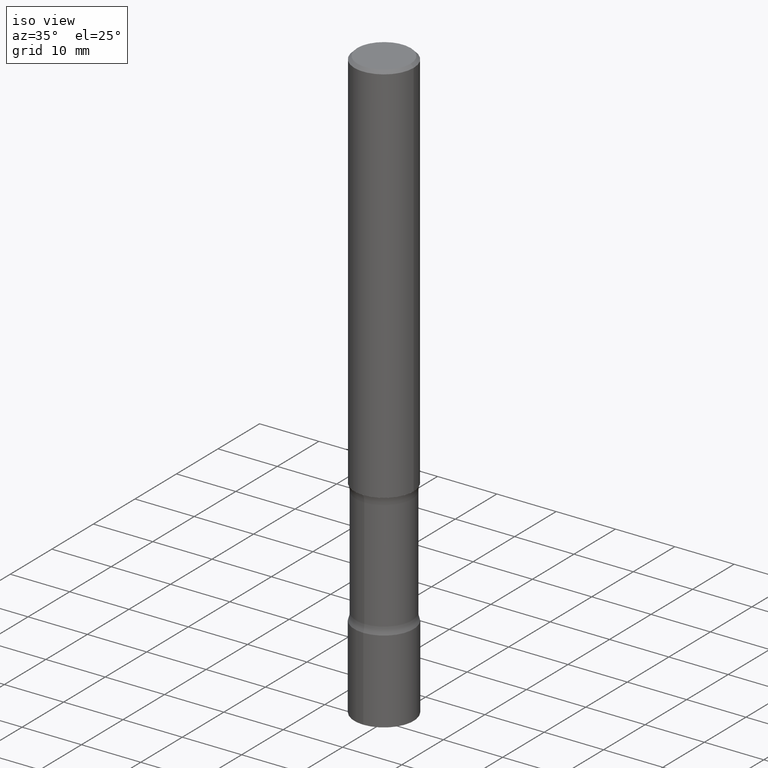
[diagram: clean part render]
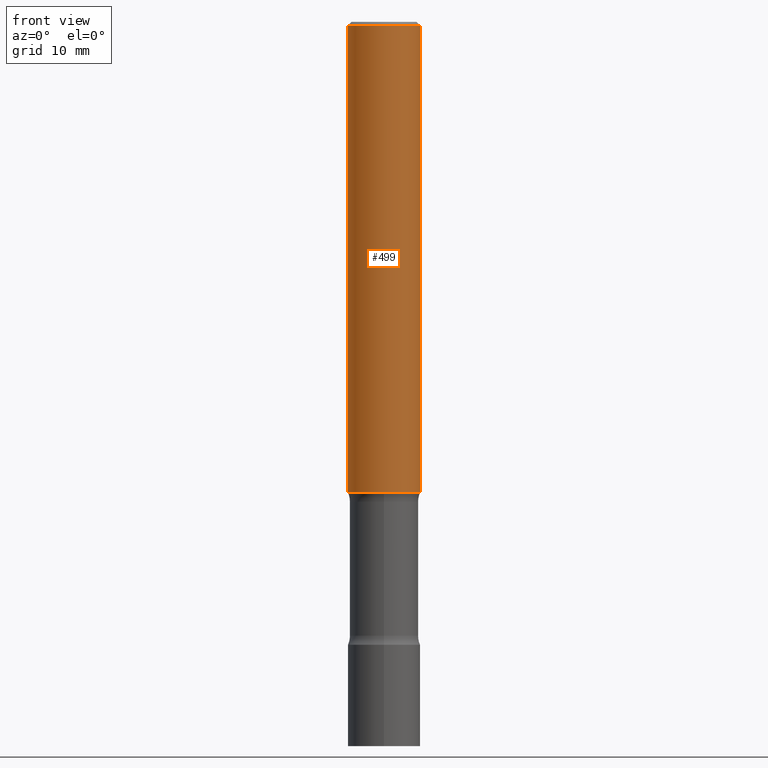
[diagram: tour spotlight — one face highlighted and labeled with its STEP entity id]
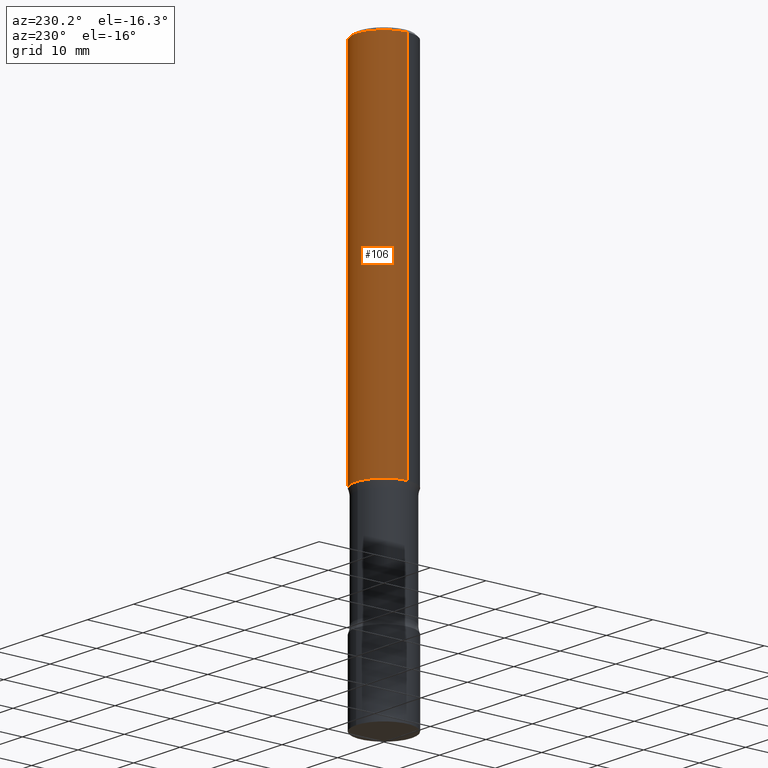
[diagram: tour spotlight — one face highlighted and labeled with its STEP entity id]
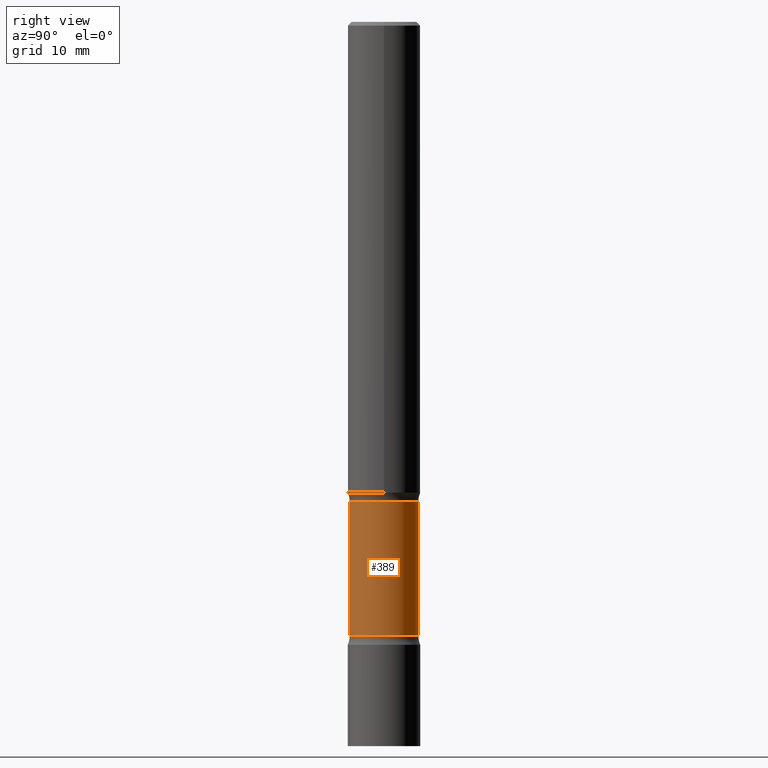
[diagram: tour spotlight — one face highlighted and labeled with its STEP entity id]
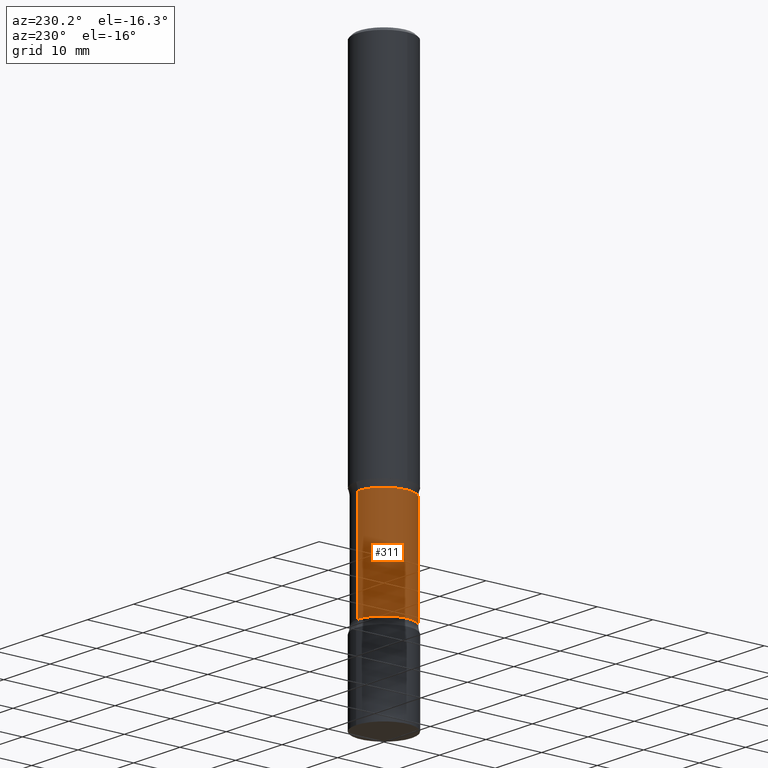
[diagram: tour spotlight — one face highlighted and labeled with its STEP entity id]
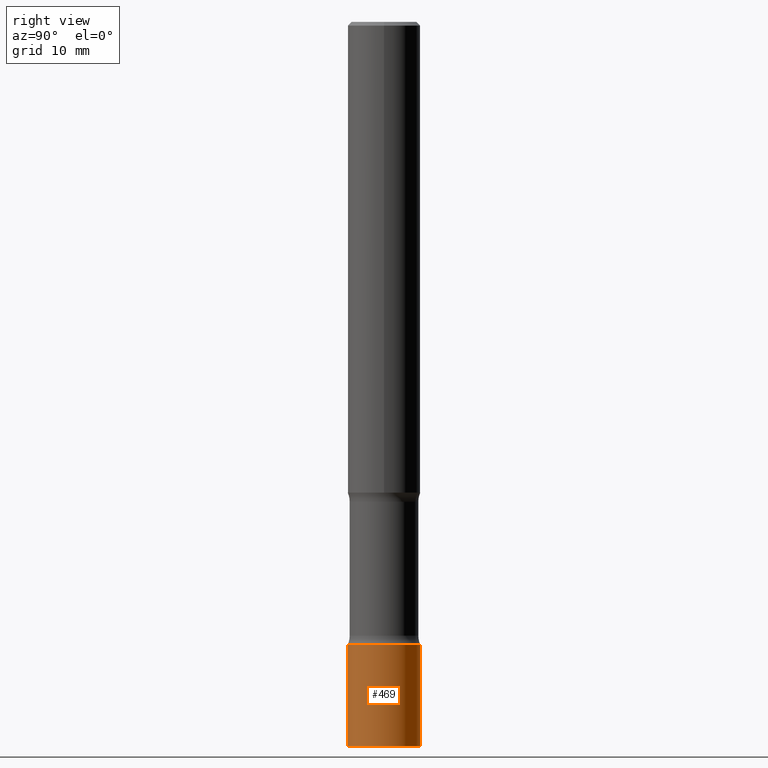
[diagram: tour spotlight — one face highlighted and labeled with its STEP entity id]
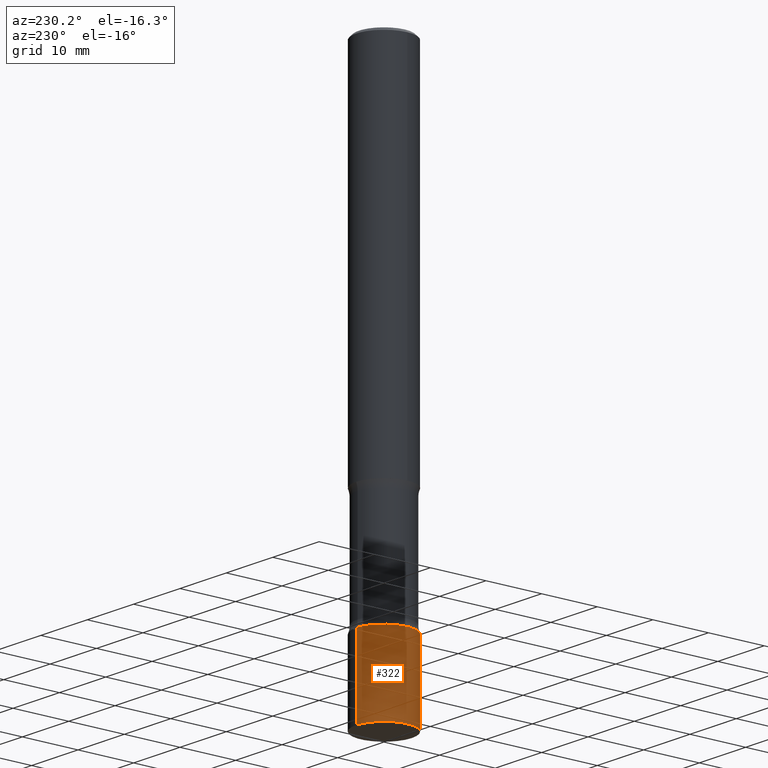
[diagram: tour spotlight — one face highlighted and labeled with its STEP entity id]
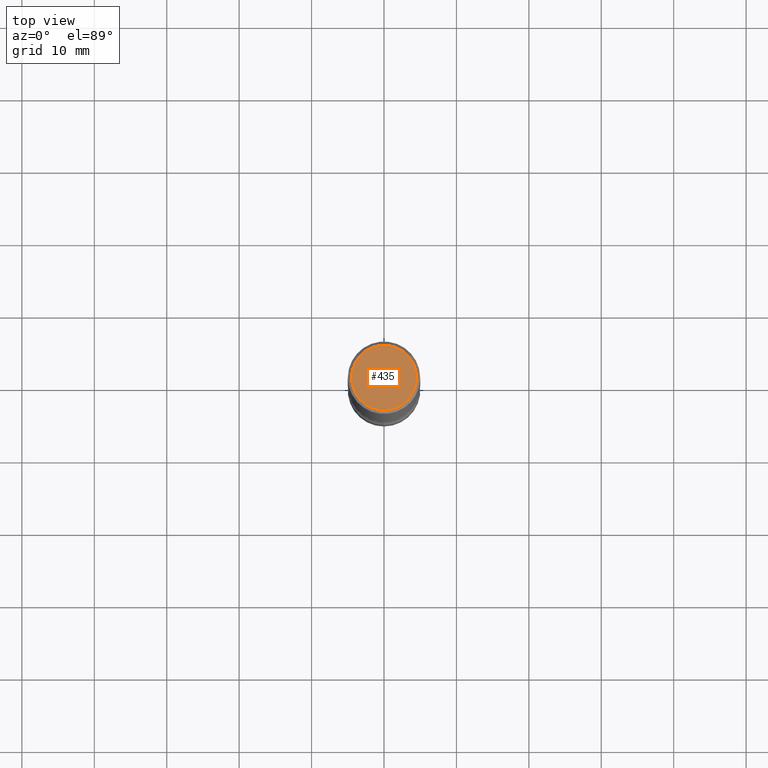
[diagram: tour spotlight — one face highlighted and labeled with its STEP entity id]
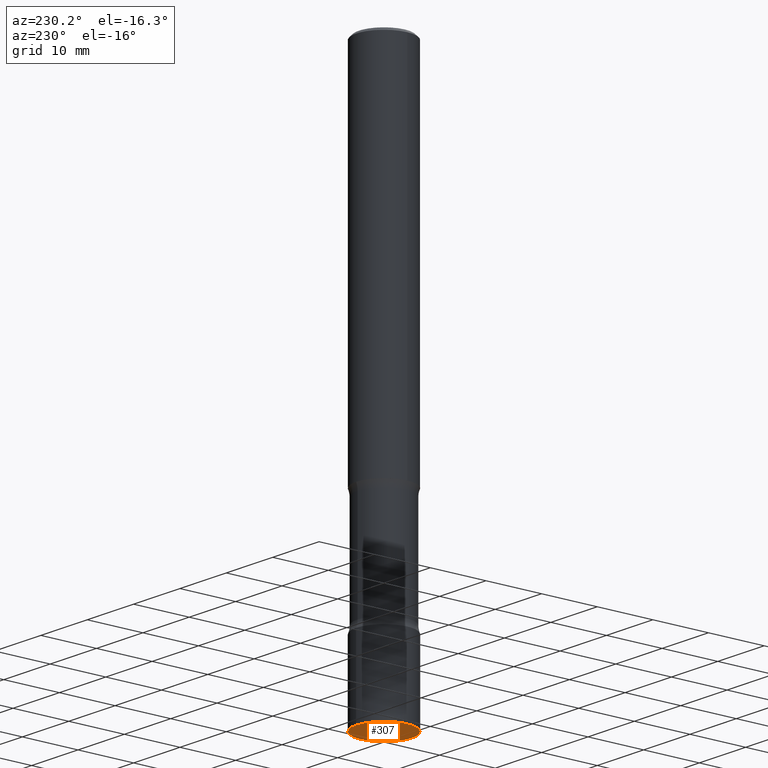
[diagram: tour spotlight — one face highlighted and labeled with its STEP entity id]
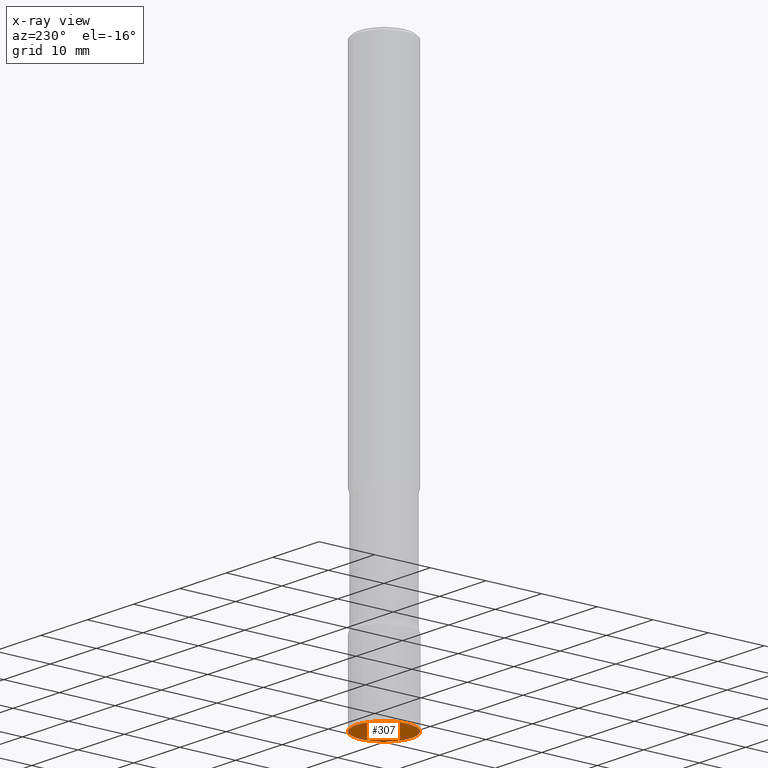
[diagram: x-ray of the same camera — body ghosted, this tour face saturated]
A machine part: a face-by-face anatomy tour. The part has 18 B-rep faces; the first image is the clean iso view, then the 8 largest visible faces are spotlighted one at a time (largest first), each with its STEP entity span.

Face 1 — front view, entity #499. In plain terms, the highlighted cylindrical surface (edge-blend (fillet) strip) has radius 5 mm, axis along (-0, 0, 1).
Definition (entity closure, byte-faithful):
#16 = CIRCLE ( 'NONE', #301, 0.1968499999999997752 ) ;
#17 = AXIS2_PLACEMENT_3D ( 'NONE', #262, #104, #299 ) ;
#42 = CARTESIAN_POINT ( 'NONE',  ( -0.1968500000000000250, -3.103561811094477015E-15, -2.559000000000000163 ) ) ;
#46 = VECTOR ( 'NONE', #358, 39.37007874015748143 ) ;
#75 = CARTESIAN_POINT ( 'NONE',  ( 4.890937612370273159E-31, -6.982962677686291609E-17, -0.02000000000000000042 ) ) ;
#80 = CARTESIAN_POINT ( 'NONE',  ( 0.1968499999999997752, -1.420318657638187347E-15, -0.02000000000000000042 ) ) ;
#81 = CARTESIAN_POINT ( 'NONE',  ( -0.1968499999999997752, 1.304766576325677127E-15, -0.02000000000000000042 ) ) ;
#89 = EDGE_CURVE ( 'NONE', #485, #133, #323, .T. ) ;
#91 = VERTEX_POINT ( 'NONE', #81 ) ;
#95 = ORIENTED_EDGE ( 'NONE', *, *, #229, .F. ) ;
#101 = ORIENTED_EDGE ( 'NONE', *, *, #257, .F. ) ;
#104 = DIRECTION ( 'NONE',  ( -2.445468806185136597E-29, 3.491481338843145583E-15, 1.000000000000000000 ) ) ;
#105 = DIRECTION ( 'NONE',  ( 1.000000000000000000, -6.982962677686267499E-15, 0.000000000000000000 ) ) ;
#118 = EDGE_CURVE ( 'NONE', #133, #226, #349, .T. ) ;
#133 = VERTEX_POINT ( 'NONE', #279 ) ;
#139 = ORIENTED_EDGE ( 'NONE', *, *, #118, .T. ) ;
#163 = VECTOR ( 'NONE', #273, 39.37007874015748143 ) ;
#224 = EDGE_LOOP ( 'NONE', ( #101, #426, #139, #95 ) ) ;
#226 = VERTEX_POINT ( 'NONE', #80 ) ;
#229 = EDGE_CURVE ( 'NONE', #91, #226, #16, .T. ) ;
#249 = CARTESIAN_POINT ( 'NONE',  ( -0.1968499999999999139, 1.398703375343756604E-15, -9.682923725166778072E-30 ) ) ;
#257 = EDGE_CURVE ( 'NONE', #485, #91, #442, .T. ) ;
#262 = CARTESIAN_POINT ( 'NONE',  ( 0.000000000000000000, 0.000000000000000000, 0.000000000000000000 ) ) ;
#269 = CARTESIAN_POINT ( 'NONE',  ( 0.1968499999999999139, -1.374596203102541017E-15, 9.598753983154295253E-30 ) ) ;
#273 = DIRECTION ( 'NONE',  ( -2.445468806185136877E-29, 3.491481338843145188E-15, 1.000000000000000000 ) ) ;
#279 = CARTESIAN_POINT ( 'NONE',  ( 0.1968500000000000250, -1.030929694920215344E-14, -2.559000000000000163 ) ) ;
#299 = DIRECTION ( 'NONE',  ( 1.000000000000000000, -6.982962677686266711E-15, 4.876176775795935793E-29 ) ) ;
#301 = AXIS2_PLACEMENT_3D ( 'NONE', #75, #470, #341 ) ;
#323 = CIRCLE ( 'NONE', #331, 0.1968500000000000250 ) ;
#331 = AXIS2_PLACEMENT_3D ( 'NONE', #471, #439, #105 ) ;
#341 = DIRECTION ( 'NONE',  ( 1.000000000000000000, -6.982962677686266711E-15, 0.000000000000000000 ) ) ;
#347 = FACE_OUTER_BOUND ( 'NONE', #224, .T. ) ;
#349 = LINE ( 'NONE', #269, #163 ) ;
#358 = DIRECTION ( 'NONE',  ( -2.445468806185136877E-29, 3.491481338843145188E-15, 1.000000000000000000 ) ) ;
#426 = ORIENTED_EDGE ( 'NONE', *, *, #89, .T. ) ;
#439 = DIRECTION ( 'NONE',  ( -2.445468806185136597E-29, 3.491481338843145583E-15, 1.000000000000000000 ) ) ;
#442 = LINE ( 'NONE', #249, #46 ) ;
#455 = CYLINDRICAL_SURFACE ( 'NONE', #17, 0.1968499999999999139 ) ;
#470 = DIRECTION ( 'NONE',  ( -2.445468806185136597E-29, 3.491481338843145583E-15, 1.000000000000000000 ) ) ;
#471 = CARTESIAN_POINT ( 'NONE',  ( 6.257954675027765161E-29, -8.934700746099610252E-15, -2.559000000000000163 ) ) ;
#485 = VERTEX_POINT ( 'NONE', #42 ) ;
#499 = ADVANCED_FACE ( 'NONE', ( #347 ), #455, .T. ) ;

Face 2 — auxiliary view, entity #106. In plain terms, the highlighted cylindrical surface (edge-blend (fillet) strip) has radius 5 mm, axis along (-0, 0, 1).
Definition (entity closure, byte-faithful):
#24 = CIRCLE ( 'NONE', #449, 0.1968500000000000250 ) ;
#42 = CARTESIAN_POINT ( 'NONE',  ( -0.1968500000000000250, -3.103561811094477015E-15, -2.559000000000000163 ) ) ;
#46 = VECTOR ( 'NONE', #358, 39.37007874015748143 ) ;
#61 = AXIS2_PLACEMENT_3D ( 'NONE', #143, #271, #425 ) ;
#80 = CARTESIAN_POINT ( 'NONE',  ( 0.1968499999999997752, -1.420318657638187347E-15, -0.02000000000000000042 ) ) ;
#81 = CARTESIAN_POINT ( 'NONE',  ( -0.1968499999999997752, 1.304766576325677127E-15, -0.02000000000000000042 ) ) ;
#91 = VERTEX_POINT ( 'NONE', #81 ) ;
#106 = ADVANCED_FACE ( 'NONE', ( #460 ), #502, .T. ) ;
#114 = DIRECTION ( 'NONE',  ( -2.445468806185136597E-29, 3.491481338843145583E-15, 1.000000000000000000 ) ) ;
#118 = EDGE_CURVE ( 'NONE', #133, #226, #349, .T. ) ;
#133 = VERTEX_POINT ( 'NONE', #279 ) ;
#143 = CARTESIAN_POINT ( 'NONE',  ( 0.000000000000000000, 0.000000000000000000, 0.000000000000000000 ) ) ;
#153 = CARTESIAN_POINT ( 'NONE',  ( 4.890937612370273159E-31, -6.982962677686291609E-17, -0.02000000000000000042 ) ) ;
#163 = VECTOR ( 'NONE', #273, 39.37007874015748143 ) ;
#177 = DIRECTION ( 'NONE',  ( 1.000000000000000000, -6.982962677686266711E-15, 0.000000000000000000 ) ) ;
#221 = EDGE_CURVE ( 'NONE', #226, #91, #239, .T. ) ;
#226 = VERTEX_POINT ( 'NONE', #80 ) ;
#239 = CIRCLE ( 'NONE', #272, 0.1968499999999997752 ) ;
#249 = CARTESIAN_POINT ( 'NONE',  ( -0.1968499999999999139, 1.398703375343756604E-15, -9.682923725166778072E-30 ) ) ;
#257 = EDGE_CURVE ( 'NONE', #485, #91, #442, .T. ) ;
#269 = CARTESIAN_POINT ( 'NONE',  ( 0.1968499999999999139, -1.374596203102541017E-15, 9.598753983154295253E-30 ) ) ;
#271 = DIRECTION ( 'NONE',  ( -2.445468806185136597E-29, 3.491481338843145583E-15, 1.000000000000000000 ) ) ;
#272 = AXIS2_PLACEMENT_3D ( 'NONE', #153, #433, #177 ) ;
#273 = DIRECTION ( 'NONE',  ( -2.445468806185136877E-29, 3.491481338843145188E-15, 1.000000000000000000 ) ) ;
#279 = CARTESIAN_POINT ( 'NONE',  ( 0.1968500000000000250, -1.030929694920215344E-14, -2.559000000000000163 ) ) ;
#282 = EDGE_CURVE ( 'NONE', #133, #485, #24, .T. ) ;
#289 = DIRECTION ( 'NONE',  ( 1.000000000000000000, -6.982962677686267499E-15, 0.000000000000000000 ) ) ;
#300 = ORIENTED_EDGE ( 'NONE', *, *, #282, .T. ) ;
#329 = ORIENTED_EDGE ( 'NONE', *, *, #221, .F. ) ;
#349 = LINE ( 'NONE', #269, #163 ) ;
#358 = DIRECTION ( 'NONE',  ( -2.445468806185136877E-29, 3.491481338843145188E-15, 1.000000000000000000 ) ) ;
#382 = EDGE_LOOP ( 'NONE', ( #300, #457, #329, #386 ) ) ;
#386 = ORIENTED_EDGE ( 'NONE', *, *, #118, .F. ) ;
#425 = DIRECTION ( 'NONE',  ( 1.000000000000000000, -6.982962677686266711E-15, 4.876176775795935793E-29 ) ) ;
#433 = DIRECTION ( 'NONE',  ( -2.445468806185136597E-29, 3.491481338843145583E-15, 1.000000000000000000 ) ) ;
#442 = LINE ( 'NONE', #249, #46 ) ;
#449 = AXIS2_PLACEMENT_3D ( 'NONE', #478, #114, #289 ) ;
#457 = ORIENTED_EDGE ( 'NONE', *, *, #257, .T. ) ;
#460 = FACE_OUTER_BOUND ( 'NONE', #382, .T. ) ;
#478 = CARTESIAN_POINT ( 'NONE',  ( 6.257954675027765161E-29, -8.934700746099610252E-15, -2.559000000000000163 ) ) ;
#485 = VERTEX_POINT ( 'NONE', #42 ) ;
#502 = CYLINDRICAL_SURFACE ( 'NONE', #61, 0.1968499999999999139 ) ;

Face 3 — right view, entity #389. In plain terms, the highlighted cylindrical surface (edge-blend (fillet) strip) has radius 4.7409 mm, axis along (0, -0, -1).
Definition (entity closure, byte-faithful):
#7 = CARTESIAN_POINT ( 'NONE',  ( 1.303369983790224529E-15, 0.1866499999999884918, -3.336343352317409749 ) ) ;
#9 = CIRCLE ( 'NONE', #126, 0.1866500000000001769 ) ;
#19 = DIRECTION ( 'NONE',  ( 2.621033774740748860E-29, -3.240062311334059652E-15, -1.000000000000000000 ) ) ;
#35 = VERTEX_POINT ( 'NONE', #7 ) ;
#65 = CYLINDRICAL_SURFACE ( 'NONE', #109, 0.1866500000000001769 ) ;
#102 = CARTESIAN_POINT ( 'NONE',  ( 9.722309541468059850E-29, -1.361063429711225876E-14, -3.937000000000000277 ) ) ;
#109 = AXIS2_PLACEMENT_3D ( 'NONE', #102, #429, #209 ) ;
#113 = EDGE_CURVE ( 'NONE', #298, #130, #9, .T. ) ;
#124 = DIRECTION ( 'NONE',  ( 2.621033774740748860E-29, -3.240062311334059652E-15, -1.000000000000000000 ) ) ;
#126 = AXIS2_PLACEMENT_3D ( 'NONE', #328, #124, #266 ) ;
#130 = VERTEX_POINT ( 'NONE', #507 ) ;
#138 = ORIENTED_EDGE ( 'NONE', *, *, #383, .F. ) ;
#140 = DIRECTION ( 'NONE',  ( 6.982962677686266711E-15, 1.000000000000000000, -2.927241354046890727E-15 ) ) ;
#146 = DIRECTION ( 'NONE',  ( 2.621033774740748860E-29, -3.240062311334059652E-15, -1.000000000000000000 ) ) ;
#152 = FACE_OUTER_BOUND ( 'NONE', #397, .T. ) ;
#157 = CARTESIAN_POINT ( 'NONE',  ( 1.303369983790205202E-15, 0.1866499999999908510, -2.608456647682592333 ) ) ;
#164 = AXIS2_PLACEMENT_3D ( 'NONE', #387, #146, #140 ) ;
#172 = VECTOR ( 'NONE', #352, 39.37007874015748143 ) ;
#182 = ORIENTED_EDGE ( 'NONE', *, *, #187, .T. ) ;
#187 = EDGE_CURVE ( 'NONE', #130, #219, #438, .T. ) ;
#205 = LINE ( 'NONE', #206, #424 ) ;
#206 = CARTESIAN_POINT ( 'NONE',  ( 1.303369983790240109E-15, 0.1866499999999865489, -3.937000000000000721 ) ) ;
#209 = DIRECTION ( 'NONE',  ( 6.982962677686266711E-15, 1.000000000000000000, -2.927241354046890727E-15 ) ) ;
#219 = VERTEX_POINT ( 'NONE', #346 ) ;
#266 = DIRECTION ( 'NONE',  ( 6.982962677686266711E-15, 1.000000000000000000, -2.927241354046890727E-15 ) ) ;
#298 = VERTEX_POINT ( 'NONE', #157 ) ;
#302 = ORIENTED_EDGE ( 'NONE', *, *, #446, .F. ) ;
#328 = CARTESIAN_POINT ( 'NONE',  ( 6.240152543836834912E-29, -9.306071052295215238E-15, -2.608456647682591889 ) ) ;
#346 = CARTESIAN_POINT ( 'NONE',  ( -1.315500491072609724E-15, -0.1866500000000118620, -3.336343352317408861 ) ) ;
#352 = DIRECTION ( 'NONE',  ( 2.621033774740748860E-29, -3.240062311334059652E-15, -1.000000000000000000 ) ) ;
#383 = EDGE_CURVE ( 'NONE', #35, #219, #415, .T. ) ;
#387 = CARTESIAN_POINT ( 'NONE',  ( 8.147968180869435067E-29, -1.166446933090363476E-14, -3.336343352317409305 ) ) ;
#389 = ADVANCED_FACE ( 'NONE', ( #152 ), #65, .T. ) ;
#397 = EDGE_LOOP ( 'NONE', ( #491, #182, #138, #302 ) ) ;
#398 = CARTESIAN_POINT ( 'NONE',  ( -1.280511951283960283E-15, -0.1866500000000138049, -3.936999999999999389 ) ) ;
#415 = CIRCLE ( 'NONE', #164, 0.1866500000000001769 ) ;
#424 = VECTOR ( 'NONE', #19, 39.37007874015748143 ) ;
#429 = DIRECTION ( 'NONE',  ( 2.621033774740748860E-29, -3.240062311334059652E-15, -1.000000000000000000 ) ) ;
#438 = LINE ( 'NONE', #398, #172 ) ;
#446 = EDGE_CURVE ( 'NONE', #298, #35, #205, .T. ) ;
#491 = ORIENTED_EDGE ( 'NONE', *, *, #113, .T. ) ;
#507 = CARTESIAN_POINT ( 'NONE',  ( -1.315500491072630826E-15, -0.1866500000000095028, -2.608456647682591445 ) ) ;

Face 4 — auxiliary view, entity #311. In plain terms, the highlighted cylindrical surface (edge-blend (fillet) strip) has radius 4.7409 mm, axis along (0, -0, -1).
Definition (entity closure, byte-faithful):
#5 = DIRECTION ( 'NONE',  ( 2.621033774740748860E-29, -3.240062311334059652E-15, -1.000000000000000000 ) ) ;
#7 = CARTESIAN_POINT ( 'NONE',  ( 1.303369983790224529E-15, 0.1866499999999884918, -3.336343352317409749 ) ) ;
#10 = DIRECTION ( 'NONE',  ( 2.621033774740748860E-29, -3.240062311334059652E-15, -1.000000000000000000 ) ) ;
#12 = CYLINDRICAL_SURFACE ( 'NONE', #53, 0.1866500000000001769 ) ;
#19 = DIRECTION ( 'NONE',  ( 2.621033774740748860E-29, -3.240062311334059652E-15, -1.000000000000000000 ) ) ;
#35 = VERTEX_POINT ( 'NONE', #7 ) ;
#53 = AXIS2_PLACEMENT_3D ( 'NONE', #367, #5, #317 ) ;
#67 = ORIENTED_EDGE ( 'NONE', *, *, #297, .T. ) ;
#71 = CIRCLE ( 'NONE', #495, 0.1866500000000001769 ) ;
#119 = DIRECTION ( 'NONE',  ( 6.982962677686266711E-15, 1.000000000000000000, -2.927241354046890727E-15 ) ) ;
#130 = VERTEX_POINT ( 'NONE', #507 ) ;
#157 = CARTESIAN_POINT ( 'NONE',  ( 1.303369983790205202E-15, 0.1866499999999908510, -2.608456647682592333 ) ) ;
#160 = CARTESIAN_POINT ( 'NONE',  ( 6.240152543836834912E-29, -9.306071052295215238E-15, -2.608456647682591889 ) ) ;
#169 = ORIENTED_EDGE ( 'NONE', *, *, #338, .F. ) ;
#172 = VECTOR ( 'NONE', #352, 39.37007874015748143 ) ;
#180 = EDGE_LOOP ( 'NONE', ( #258, #67, #310, #169 ) ) ;
#187 = EDGE_CURVE ( 'NONE', #130, #219, #438, .T. ) ;
#200 = DIRECTION ( 'NONE',  ( 6.982962677686266711E-15, 1.000000000000000000, -2.927241354046890727E-15 ) ) ;
#204 = FACE_OUTER_BOUND ( 'NONE', #180, .T. ) ;
#205 = LINE ( 'NONE', #206, #424 ) ;
#206 = CARTESIAN_POINT ( 'NONE',  ( 1.303369983790240109E-15, 0.1866499999999865489, -3.937000000000000721 ) ) ;
#219 = VERTEX_POINT ( 'NONE', #346 ) ;
#258 = ORIENTED_EDGE ( 'NONE', *, *, #187, .F. ) ;
#293 = CIRCLE ( 'NONE', #487, 0.1866500000000001769 ) ;
#297 = EDGE_CURVE ( 'NONE', #130, #298, #293, .T. ) ;
#298 = VERTEX_POINT ( 'NONE', #157 ) ;
#310 = ORIENTED_EDGE ( 'NONE', *, *, #446, .T. ) ;
#311 = ADVANCED_FACE ( 'NONE', ( #204 ), #12, .T. ) ;
#317 = DIRECTION ( 'NONE',  ( 6.982962677686266711E-15, 1.000000000000000000, -2.927241354046890727E-15 ) ) ;
#338 = EDGE_CURVE ( 'NONE', #219, #35, #71, .T. ) ;
#346 = CARTESIAN_POINT ( 'NONE',  ( -1.315500491072609724E-15, -0.1866500000000118620, -3.336343352317408861 ) ) ;
#352 = DIRECTION ( 'NONE',  ( 2.621033774740748860E-29, -3.240062311334059652E-15, -1.000000000000000000 ) ) ;
#360 = CARTESIAN_POINT ( 'NONE',  ( 8.147968180869435067E-29, -1.166446933090363476E-14, -3.336343352317409305 ) ) ;
#367 = CARTESIAN_POINT ( 'NONE',  ( 9.722309541468059850E-29, -1.361063429711225876E-14, -3.937000000000000277 ) ) ;
#398 = CARTESIAN_POINT ( 'NONE',  ( -1.280511951283960283E-15, -0.1866500000000138049, -3.936999999999999389 ) ) ;
#412 = DIRECTION ( 'NONE',  ( 2.621033774740748860E-29, -3.240062311334059652E-15, -1.000000000000000000 ) ) ;
#424 = VECTOR ( 'NONE', #19, 39.37007874015748143 ) ;
#438 = LINE ( 'NONE', #398, #172 ) ;
#446 = EDGE_CURVE ( 'NONE', #298, #35, #205, .T. ) ;
#487 = AXIS2_PLACEMENT_3D ( 'NONE', #160, #412, #200 ) ;
#495 = AXIS2_PLACEMENT_3D ( 'NONE', #360, #10, #119 ) ;
#507 = CARTESIAN_POINT ( 'NONE',  ( -1.315500491072630826E-15, -0.1866500000000095028, -2.608456647682591445 ) ) ;

Face 5 — right view, entity #469. In plain terms, the highlighted cylindrical surface (edge-blend (fillet) strip) has radius 5 mm, axis along (-0, 0, 1).
Definition (entity closure, byte-faithful):
#3 = DIRECTION ( 'NONE',  ( -6.982962677686265133E-15, -1.000000000000000000, 2.775563112689115906E-15 ) ) ;
#4 = DIRECTION ( 'NONE',  ( -2.444797603175308813E-29, 3.492442539755722065E-15, 1.000000000000000000 ) ) ;
#14 = FACE_OUTER_BOUND ( 'NONE', #128, .T. ) ;
#27 = VERTEX_POINT ( 'NONE', #281 ) ;
#31 = EDGE_CURVE ( 'NONE', #295, #27, #45, .T. ) ;
#37 = CIRCLE ( 'NONE', #466, 0.1968500000000000250 ) ;
#45 = LINE ( 'NONE', #356, #183 ) ;
#55 = CARTESIAN_POINT ( 'NONE',  ( -1.374596203102541608E-15, -0.1968500000000000527, 6.874873139509140427E-16 ) ) ;
#58 = LINE ( 'NONE', #55, #248 ) ;
#128 = EDGE_LOOP ( 'NONE', ( #345, #265, #427, #340 ) ) ;
#158 = CIRCLE ( 'NONE', #260, 0.1968500000000000527 ) ;
#165 = DIRECTION ( 'NONE',  ( -6.982962677686265133E-15, -1.000000000000000000, 2.775563112689116301E-15 ) ) ;
#183 = VECTOR ( 'NONE', #4, 39.37007874015748143 ) ;
#185 = DIRECTION ( 'NONE',  ( -2.444797603175308533E-29, 3.492442539755722065E-15, 1.000000000000000000 ) ) ;
#216 = EDGE_CURVE ( 'NONE', #489, #27, #158, .T. ) ;
#243 = CARTESIAN_POINT ( 'NONE',  ( 9.625168163701189876E-29, -1.374974627901827809E-14, -3.937000000000000277 ) ) ;
#248 = VECTOR ( 'NONE', #393, 39.37007874015748143 ) ;
#260 = AXIS2_PLACEMENT_3D ( 'NONE', #315, #185, #3 ) ;
#265 = ORIENTED_EDGE ( 'NONE', *, *, #31, .T. ) ;
#281 = CARTESIAN_POINT ( 'NONE',  ( 1.398703375343853634E-15, 0.1968499999999882288, -3.385800000000001475 ) ) ;
#290 = AXIS2_PLACEMENT_3D ( 'NONE', #480, #326, #452 ) ;
#295 = VERTEX_POINT ( 'NONE', #404 ) ;
#315 = CARTESIAN_POINT ( 'NONE',  ( 8.277595724830961371E-29, -1.182471195110492676E-14, -3.385800000000000587 ) ) ;
#326 = DIRECTION ( 'NONE',  ( -2.444797603175308533E-29, 3.492442539755722065E-15, 1.000000000000000000 ) ) ;
#340 = ORIENTED_EDGE ( 'NONE', *, *, #483, .F. ) ;
#345 = ORIENTED_EDGE ( 'NONE', *, *, #365, .T. ) ;
#356 = CARTESIAN_POINT ( 'NONE',  ( 1.398703375343757393E-15, 0.1968500000000000527, -6.874873139509140427E-16 ) ) ;
#365 = EDGE_CURVE ( 'NONE', #391, #295, #37, .T. ) ;
#381 = CARTESIAN_POINT ( 'NONE',  ( -1.374596203102458975E-15, -0.1968500000000118488, -3.385800000000000143 ) ) ;
#391 = VERTEX_POINT ( 'NONE', #506 ) ;
#393 = DIRECTION ( 'NONE',  ( -2.444797603175308813E-29, 3.492442539755722065E-15, 1.000000000000000000 ) ) ;
#404 = CARTESIAN_POINT ( 'NONE',  ( 1.398703375343846929E-15, 0.1968499999999862582, -3.937000000000000721 ) ) ;
#406 = DIRECTION ( 'NONE',  ( -2.444797603175308533E-29, 3.492442539755722065E-15, 1.000000000000000000 ) ) ;
#427 = ORIENTED_EDGE ( 'NONE', *, *, #216, .F. ) ;
#452 = DIRECTION ( 'NONE',  ( -6.982962677686265133E-15, -1.000000000000000000, 3.492442539755722065E-15 ) ) ;
#466 = AXIS2_PLACEMENT_3D ( 'NONE', #243, #406, #165 ) ;
#469 = ADVANCED_FACE ( 'NONE', ( #14 ), #488, .T. ) ;
#480 = CARTESIAN_POINT ( 'NONE',  ( 0.000000000000000000, 0.000000000000000000, 0.000000000000000000 ) ) ;
#483 = EDGE_CURVE ( 'NONE', #391, #489, #58, .T. ) ;
#488 = CYLINDRICAL_SURFACE ( 'NONE', #290, 0.1968500000000000527 ) ;
#489 = VERTEX_POINT ( 'NONE', #381 ) ;
#506 = CARTESIAN_POINT ( 'NONE',  ( -1.374596203102445170E-15, -0.1968500000000137640, -3.936999999999999389 ) ) ;

Face 6 — auxiliary view, entity #322. In plain terms, the highlighted cylindrical surface (edge-blend (fillet) strip) has radius 5 mm, axis along (-0, 0, 1).
Definition (entity closure, byte-faithful):
#4 = DIRECTION ( 'NONE',  ( -2.444797603175308813E-29, 3.492442539755722065E-15, 1.000000000000000000 ) ) ;
#27 = VERTEX_POINT ( 'NONE', #281 ) ;
#31 = EDGE_CURVE ( 'NONE', #295, #27, #45, .T. ) ;
#38 = ORIENTED_EDGE ( 'NONE', *, *, #167, .T. ) ;
#39 = DIRECTION ( 'NONE',  ( -2.444797603175308533E-29, 3.492442539755722065E-15, 1.000000000000000000 ) ) ;
#45 = LINE ( 'NONE', #356, #183 ) ;
#47 = DIRECTION ( 'NONE',  ( -6.982962677686265133E-15, -1.000000000000000000, 3.492442539755722065E-15 ) ) ;
#48 = AXIS2_PLACEMENT_3D ( 'NONE', #194, #39, #110 ) ;
#55 = CARTESIAN_POINT ( 'NONE',  ( -1.374596203102541608E-15, -0.1968500000000000527, 6.874873139509140427E-16 ) ) ;
#58 = LINE ( 'NONE', #55, #248 ) ;
#84 = CARTESIAN_POINT ( 'NONE',  ( 8.277595724830961371E-29, -1.182471195110492676E-14, -3.385800000000000587 ) ) ;
#110 = DIRECTION ( 'NONE',  ( -6.982962677686265133E-15, -1.000000000000000000, 2.775563112689116301E-15 ) ) ;
#162 = CARTESIAN_POINT ( 'NONE',  ( 0.000000000000000000, 0.000000000000000000, 0.000000000000000000 ) ) ;
#167 = EDGE_CURVE ( 'NONE', #295, #391, #377, .T. ) ;
#183 = VECTOR ( 'NONE', #4, 39.37007874015748143 ) ;
#193 = ORIENTED_EDGE ( 'NONE', *, *, #483, .T. ) ;
#194 = CARTESIAN_POINT ( 'NONE',  ( 9.625168163701189876E-29, -1.374974627901827809E-14, -3.937000000000000277 ) ) ;
#215 = EDGE_LOOP ( 'NONE', ( #312, #38, #193, #253 ) ) ;
#242 = DIRECTION ( 'NONE',  ( -6.982962677686265133E-15, -1.000000000000000000, 2.775563112689115906E-15 ) ) ;
#248 = VECTOR ( 'NONE', #393, 39.37007874015748143 ) ;
#252 = AXIS2_PLACEMENT_3D ( 'NONE', #162, #320, #47 ) ;
#253 = ORIENTED_EDGE ( 'NONE', *, *, #335, .F. ) ;
#281 = CARTESIAN_POINT ( 'NONE',  ( 1.398703375343853634E-15, 0.1968499999999882288, -3.385800000000001475 ) ) ;
#295 = VERTEX_POINT ( 'NONE', #404 ) ;
#312 = ORIENTED_EDGE ( 'NONE', *, *, #31, .F. ) ;
#320 = DIRECTION ( 'NONE',  ( -2.444797603175308533E-29, 3.492442539755722065E-15, 1.000000000000000000 ) ) ;
#321 = DIRECTION ( 'NONE',  ( -2.444797603175308533E-29, 3.492442539755722065E-15, 1.000000000000000000 ) ) ;
#322 = ADVANCED_FACE ( 'NONE', ( #475 ), #409, .T. ) ;
#335 = EDGE_CURVE ( 'NONE', #27, #489, #414, .T. ) ;
#356 = CARTESIAN_POINT ( 'NONE',  ( 1.398703375343757393E-15, 0.1968500000000000527, -6.874873139509140427E-16 ) ) ;
#377 = CIRCLE ( 'NONE', #48, 0.1968500000000000250 ) ;
#381 = CARTESIAN_POINT ( 'NONE',  ( -1.374596203102458975E-15, -0.1968500000000118488, -3.385800000000000143 ) ) ;
#391 = VERTEX_POINT ( 'NONE', #506 ) ;
#393 = DIRECTION ( 'NONE',  ( -2.444797603175308813E-29, 3.492442539755722065E-15, 1.000000000000000000 ) ) ;
#404 = CARTESIAN_POINT ( 'NONE',  ( 1.398703375343846929E-15, 0.1968499999999862582, -3.937000000000000721 ) ) ;
#409 = CYLINDRICAL_SURFACE ( 'NONE', #252, 0.1968500000000000527 ) ;
#414 = CIRCLE ( 'NONE', #477, 0.1968500000000000527 ) ;
#475 = FACE_OUTER_BOUND ( 'NONE', #215, .T. ) ;
#477 = AXIS2_PLACEMENT_3D ( 'NONE', #84, #321, #242 ) ;
#483 = EDGE_CURVE ( 'NONE', #391, #489, #58, .T. ) ;
#489 = VERTEX_POINT ( 'NONE', #381 ) ;
#506 = CARTESIAN_POINT ( 'NONE',  ( -1.374596203102445170E-15, -0.1968500000000137640, -3.936999999999999389 ) ) ;

Face 7 — top view, entity #435. In plain terms, the highlighted planar face has unit normal (0, -0, -1).
Definition (entity closure, byte-faithful):
#49 = AXIS2_PLACEMENT_3D ( 'NONE', #296, #490, #96 ) ;
#56 = ORIENTED_EDGE ( 'NONE', *, *, #362, .T. ) ;
#78 = DIRECTION ( 'NONE',  ( -2.445468806185136597E-29, 3.491481338843145583E-15, 1.000000000000000000 ) ) ;
#85 = DIRECTION ( 'NONE',  ( -2.445468806185136597E-29, 3.491481338843145583E-15, 1.000000000000000000 ) ) ;
#96 = DIRECTION ( 'NONE',  ( -1.000000000000000000, 6.982962677686265922E-15, -4.876176775795935793E-29 ) ) ;
#120 = CARTESIAN_POINT ( 'NONE',  ( -1.043851414335219820E-46, 1.490343170380447200E-32, 4.268512490100411279E-18 ) ) ;
#145 = CARTESIAN_POINT ( 'NONE',  ( -0.1768499999999998129, 1.269851762937246069E-15, 4.268512490091652920E-18 ) ) ;
#151 = VERTEX_POINT ( 'NONE', #277 ) ;
#170 = EDGE_CURVE ( 'NONE', #176, #151, #196, .T. ) ;
#174 = EDGE_LOOP ( 'NONE', ( #337, #56 ) ) ;
#176 = VERTEX_POINT ( 'NONE', #145 ) ;
#196 = CIRCLE ( 'NONE', #246, 0.1768499999999998129 ) ;
#234 = DIRECTION ( 'NONE',  ( 1.000000000000000000, -6.982962677686266711E-15, 4.875932113059883053E-29 ) ) ;
#246 = AXIS2_PLACEMENT_3D ( 'NONE', #355, #78, #234 ) ;
#277 = CARTESIAN_POINT ( 'NONE',  ( 0.1768499999999998129, -1.316798864272040563E-15, 4.268512490109333727E-18 ) ) ;
#283 = CIRCLE ( 'NONE', #343, 0.1768499999999998129 ) ;
#287 = DIRECTION ( 'NONE',  ( 1.000000000000000000, -6.982962677686266711E-15, 4.875932113059883053E-29 ) ) ;
#296 = CARTESIAN_POINT ( 'NONE',  ( 1.234936949548814815E-15, 0.1768499999999998129, -6.153342185293594620E-16 ) ) ;
#330 = FACE_OUTER_BOUND ( 'NONE', #174, .T. ) ;
#337 = ORIENTED_EDGE ( 'NONE', *, *, #170, .T. ) ;
#343 = AXIS2_PLACEMENT_3D ( 'NONE', #120, #85, #287 ) ;
#355 = CARTESIAN_POINT ( 'NONE',  ( -1.043851414335219820E-46, 1.490343170380447200E-32, 4.268512490100411279E-18 ) ) ;
#362 = EDGE_CURVE ( 'NONE', #151, #176, #283, .T. ) ;
#413 = PLANE ( 'NONE',  #49 ) ;
#435 = ADVANCED_FACE ( 'NONE', ( #330 ), #413, .F. ) ;
#490 = DIRECTION ( 'NONE',  ( 2.438088387897960049E-29, -3.491481338843145188E-15, -1.000000000000000000 ) ) ;

Face 8 — auxiliary view, entity #307. An x-ray twin of the same camera follows (body ghosted, this face saturated) — the face is partly hidden behind the body. In plain terms, the highlighted planar face has unit normal (0, -0, -1).
Definition (entity closure, byte-faithful):
#13 = DIRECTION ( 'NONE',  ( 2.444797603175308253E-29, -3.492442539755722065E-15, -1.000000000000000000 ) ) ;
#37 = CIRCLE ( 'NONE', #466, 0.1968500000000000250 ) ;
#39 = DIRECTION ( 'NONE',  ( -2.444797603175308533E-29, 3.492442539755722065E-15, 1.000000000000000000 ) ) ;
#48 = AXIS2_PLACEMENT_3D ( 'NONE', #194, #39, #110 ) ;
#50 = FACE_OUTER_BOUND ( 'NONE', #171, .T. ) ;
#110 = DIRECTION ( 'NONE',  ( -6.982962677686265133E-15, -1.000000000000000000, 2.775563112689116301E-15 ) ) ;
#122 = CARTESIAN_POINT ( 'NONE',  ( 9.627810689950883669E-29, -1.374596203102546341E-14, -3.937000000000000277 ) ) ;
#165 = DIRECTION ( 'NONE',  ( -6.982962677686265133E-15, -1.000000000000000000, 2.775563112689116301E-15 ) ) ;
#167 = EDGE_CURVE ( 'NONE', #295, #391, #377, .T. ) ;
#171 = EDGE_LOOP ( 'NONE', ( #259, #332 ) ) ;
#194 = CARTESIAN_POINT ( 'NONE',  ( 9.625168163701189876E-29, -1.374974627901827809E-14, -3.937000000000000277 ) ) ;
#243 = CARTESIAN_POINT ( 'NONE',  ( 9.625168163701189876E-29, -1.374974627901827809E-14, -3.937000000000000277 ) ) ;
#259 = ORIENTED_EDGE ( 'NONE', *, *, #365, .F. ) ;
#291 = DIRECTION ( 'NONE',  ( 6.982962677686265922E-15, 1.000000000000000000, -3.492442539755722065E-15 ) ) ;
#295 = VERTEX_POINT ( 'NONE', #404 ) ;
#307 = ADVANCED_FACE ( 'NONE', ( #50 ), #440, .T. ) ;
#332 = ORIENTED_EDGE ( 'NONE', *, *, #167, .F. ) ;
#365 = EDGE_CURVE ( 'NONE', #391, #295, #37, .T. ) ;
#377 = CIRCLE ( 'NONE', #48, 0.1968500000000000250 ) ;
#391 = VERTEX_POINT ( 'NONE', #506 ) ;
#404 = CARTESIAN_POINT ( 'NONE',  ( 1.398703375343846929E-15, 0.1968499999999862582, -3.937000000000000721 ) ) ;
#406 = DIRECTION ( 'NONE',  ( -2.444797603175308533E-29, 3.492442539755722065E-15, 1.000000000000000000 ) ) ;
#440 = PLANE ( 'NONE',  #465 ) ;
#465 = AXIS2_PLACEMENT_3D ( 'NONE', #122, #13, #291 ) ;
#466 = AXIS2_PLACEMENT_3D ( 'NONE', #243, #406, #165 ) ;
#506 = CARTESIAN_POINT ( 'NONE',  ( -1.374596203102445170E-15, -0.1968500000000137640, -3.936999999999999389 ) ) ;